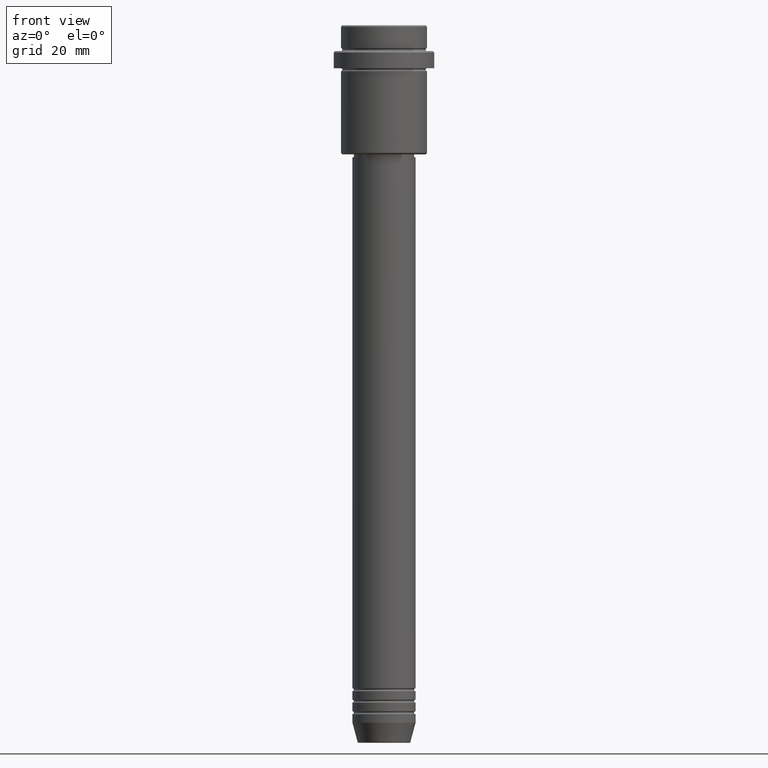
[diagram: clean part render]
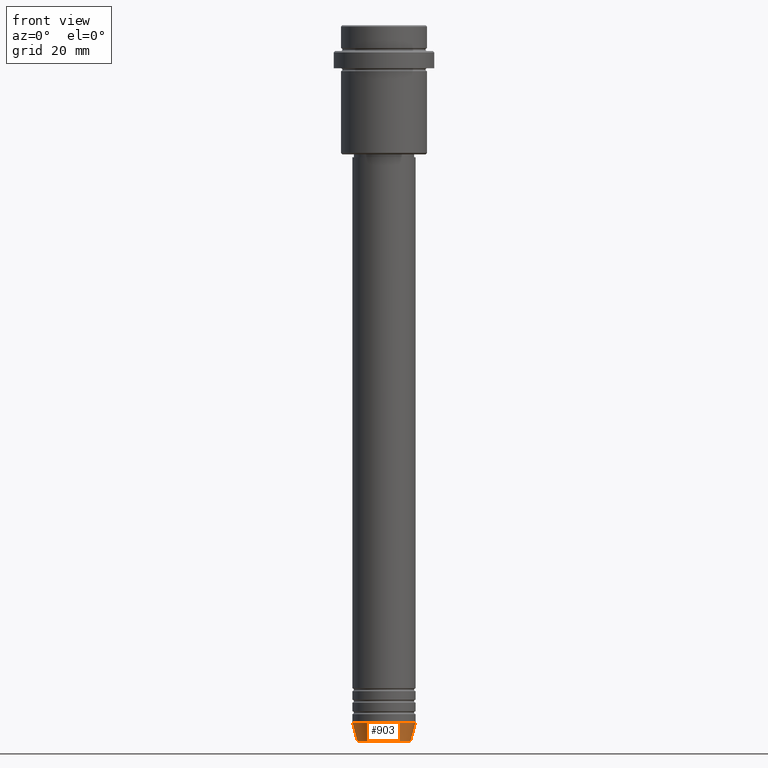
[diagram: same view with one face highlighted and labeled with its STEP entity id]
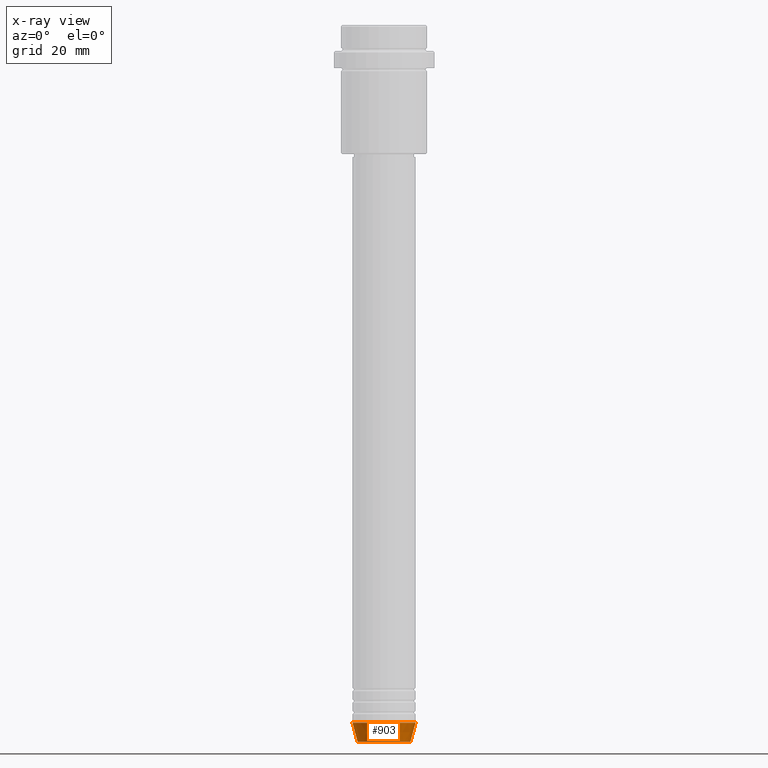
[diagram: x-ray of the same camera — body ghosted, the highlighted face saturated]
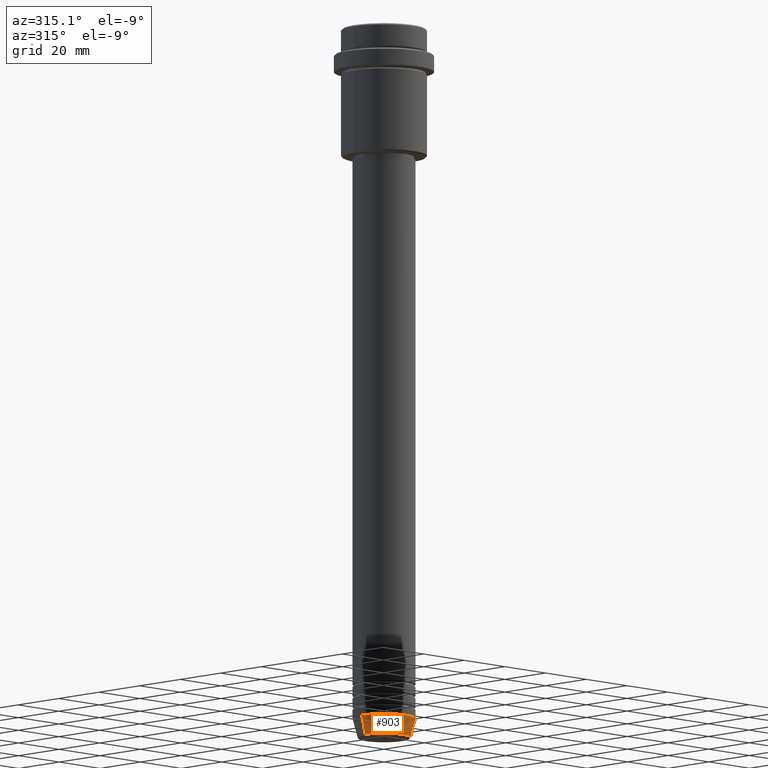
[diagram: same view with one face highlighted and labeled with its STEP entity id]
A machine part, front view. The second image highlights one B-rep face of the part: STEP entity #903.
The next image is the same camera in x-ray: the body ghosted, the highlighted face saturated — about 0% of this face is hidden behind the body in this view.
A second angle (auxiliary view) of the same face is appended — the face is thin or edge-on in the first view.
In plain terms, the highlighted conical surface has half-angle 15 deg.
Its self-contained STEP definition (entity closure, byte-faithful):
#40 = DIRECTION ( 'NONE',  ( 1.000000000000000000, 0.000000000000000000, 0.000000000000000000 ) ) ;
#54 = VERTEX_POINT ( 'NONE', #380 ) ;
#89 = AXIS2_PLACEMENT_3D ( 'NONE', #835, #604, #40 ) ;
#112 = CONICAL_SURFACE ( 'NONE', #89, 11.00000000000000000, 0.2617993877991500740 ) ;
#223 = CARTESIAN_POINT ( 'NONE',  ( 9.223655072137189492, 0.000000000000000000, -249.6294095225512422 ) ) ;
#265 = VECTOR ( 'NONE', #1130, 1000.000000000000000 ) ;
#293 = CARTESIAN_POINT ( 'NONE',  ( 0.000000000000000000, 0.000000000000000000, -249.6294095225512422 ) ) ;
#371 = VERTEX_POINT ( 'NONE', #460 ) ;
#380 = CARTESIAN_POINT ( 'NONE',  ( 11.00000000000000000, 0.000000000000000000, -243.0000000000000000 ) ) ;
#386 = FACE_OUTER_BOUND ( 'NONE', #583, .T. ) ;
#421 = ORIENTED_EDGE ( 'NONE', *, *, #630, .T. ) ;
#460 = CARTESIAN_POINT ( 'NONE',  ( -11.00000000000000000, 1.347111479062088405E-15, -243.0000000000000000 ) ) ;
#480 = LINE ( 'NONE', #703, #1069 ) ;
#550 = VERTEX_POINT ( 'NONE', #863 ) ;
#553 = ORIENTED_EDGE ( 'NONE', *, *, #1216, .F. ) ;
#583 = EDGE_LOOP ( 'NONE', ( #827, #421, #720, #553 ) ) ;
#604 = DIRECTION ( 'NONE',  ( -0.000000000000000000, -0.000000000000000000, 1.000000000000000000 ) ) ;
#630 = EDGE_CURVE ( 'NONE', #550, #709, #917, .T. ) ;
#662 = AXIS2_PLACEMENT_3D ( 'NONE', #293, #1066, #1162 ) ;
#701 = CARTESIAN_POINT ( 'NONE',  ( -11.00000000000000000, 1.347111479062088405E-15, -243.0000000000000000 ) ) ;
#703 = CARTESIAN_POINT ( 'NONE',  ( 11.00000000000000000, 0.000000000000000000, -243.0000000000000000 ) ) ;
#709 = VERTEX_POINT ( 'NONE', #223 ) ;
#720 = ORIENTED_EDGE ( 'NONE', *, *, #940, .T. ) ;
#827 = ORIENTED_EDGE ( 'NONE', *, *, #1258, .F. ) ;
#835 = CARTESIAN_POINT ( 'NONE',  ( 0.000000000000000000, 0.000000000000000000, -243.0000000000000000 ) ) ;
#863 = CARTESIAN_POINT ( 'NONE',  ( -9.223655072137189492, 1.238341722557647202E-15, -249.6294095225512422 ) ) ;
#903 = ADVANCED_FACE ( 'NONE', ( #386 ), #112, .T. ) ;
#904 = AXIS2_PLACEMENT_3D ( 'NONE', #1324, #923, #1340 ) ;
#917 = CIRCLE ( 'NONE', #662, 9.223655072137189492 ) ;
#923 = DIRECTION ( 'NONE',  ( -0.000000000000000000, -0.000000000000000000, 1.000000000000000000 ) ) ;
#931 = DIRECTION ( 'NONE',  ( 0.2588190451025213501, 0.000000000000000000, 0.9659258262890680902 ) ) ;
#940 = EDGE_CURVE ( 'NONE', #709, #54, #480, .T. ) ;
#1050 = CIRCLE ( 'NONE', #904, 11.00000000000000000 ) ;
#1066 = DIRECTION ( 'NONE',  ( -0.000000000000000000, -0.000000000000000000, 1.000000000000000000 ) ) ;
#1069 = VECTOR ( 'NONE', #931, 1000.000000000000000 ) ;
#1130 = DIRECTION ( 'NONE',  ( -0.2588190451025213501, 3.169619151431772337E-17, 0.9659258262890680902 ) ) ;
#1162 = DIRECTION ( 'NONE',  ( 1.000000000000000000, 0.000000000000000000, 0.000000000000000000 ) ) ;
#1216 = EDGE_CURVE ( 'NONE', #371, #54, #1050, .T. ) ;
#1232 = LINE ( 'NONE', #701, #265 ) ;
#1258 = EDGE_CURVE ( 'NONE', #550, #371, #1232, .T. ) ;
#1324 = CARTESIAN_POINT ( 'NONE',  ( 0.000000000000000000, 0.000000000000000000, -243.0000000000000000 ) ) ;
#1340 = DIRECTION ( 'NONE',  ( 1.000000000000000000, 0.000000000000000000, 0.000000000000000000 ) ) ;